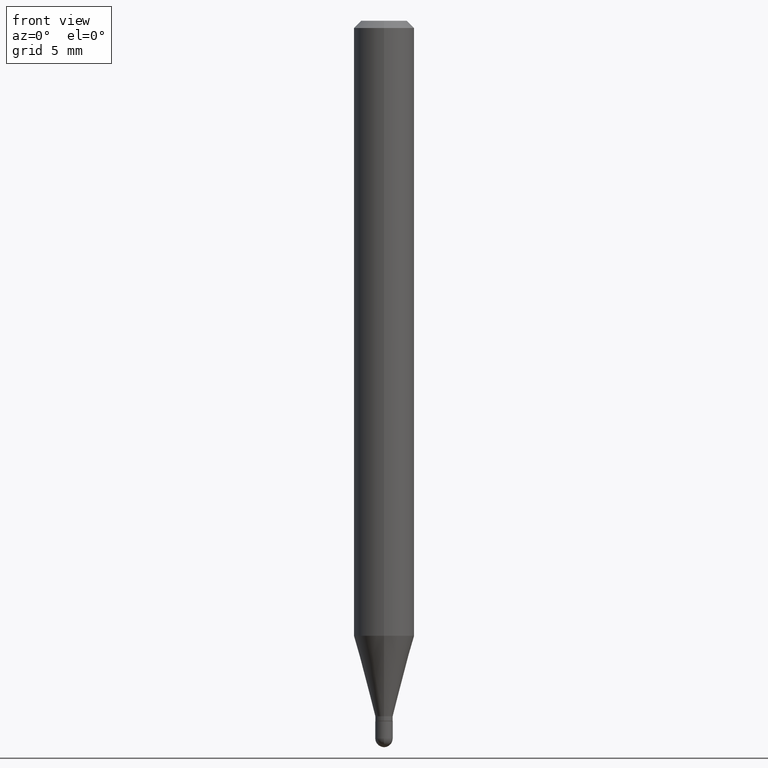
[diagram: clean part render]
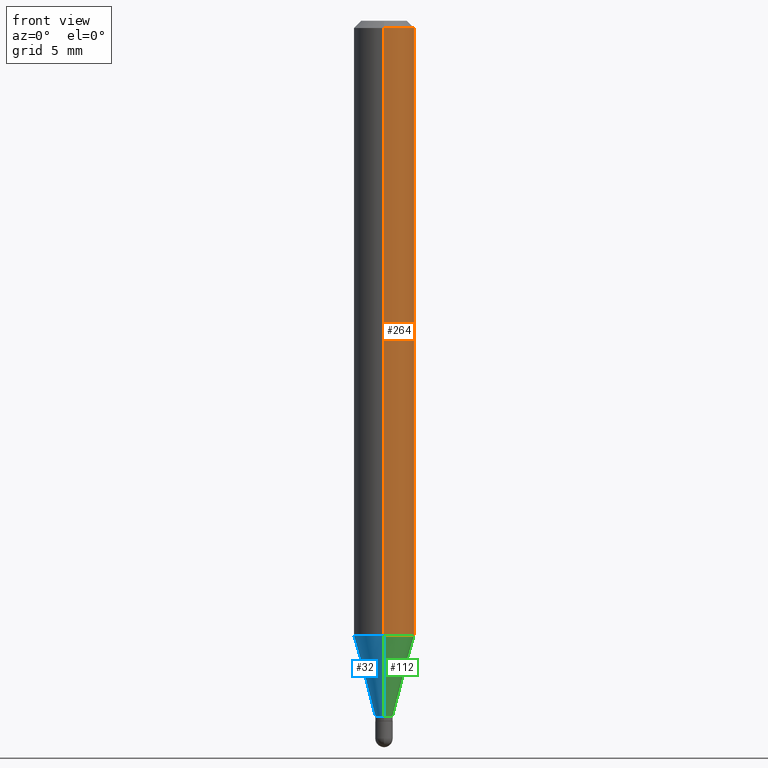
[diagram: same view with three faces highlighted in distinct colors, each labeled with its STEP entity id]
A machine part, front view with three faces highlighted in distinct colors.
Their STEP definitions:

[orange] entity #264 — the highlighted cylindrical surface (edge-blend (fillet) strip) has radius 1.5875 mm, axis along (-0, 0, 1).
#3 = DIRECTION ( 'NONE',  ( -6.982962677686265922E-15, -1.000000000000000000, 3.483106191921935554E-15 ) ) ;
#5 = DIRECTION ( 'NONE',  ( -6.982962677686265922E-15, -1.000000000000000000, 3.491499279888508481E-15 ) ) ;
#43 = ORIENTED_EDGE ( 'NONE', *, *, #195, .F. ) ;
#54 = AXIS2_PLACEMENT_3D ( 'NONE', #324, #85, #120 ) ;
#55 = VECTOR ( 'NONE', #94, 39.37007874015748143 ) ;
#82 = EDGE_CURVE ( 'NONE', #286, #401, #122, .T. ) ;
#85 = DIRECTION ( 'NONE',  ( -2.445456278020119844E-29, 3.491499279888508481E-15, 1.000000000000000000 ) ) ;
#94 = DIRECTION ( 'NONE',  ( -2.445456278020120124E-29, 3.491499279888508481E-15, 1.000000000000000000 ) ) ;
#96 = CYLINDRICAL_SURFACE ( 'NONE', #314, 0.06250000000000000000 ) ;
#116 = EDGE_CURVE ( 'NONE', #401, #178, #499, .T. ) ;
#120 = DIRECTION ( 'NONE',  ( -6.982962677686265922E-15, -1.000000000000000000, 4.370956789862821150E-15 ) ) ;
#122 = CIRCLE ( 'NONE', #54, 0.06250000000000000000 ) ;
#124 = DIRECTION ( 'NONE',  ( -2.445456278020119844E-29, 3.491499279888508481E-15, 1.000000000000000000 ) ) ;
#125 = ORIENTED_EDGE ( 'NONE', *, *, #116, .T. ) ;
#145 = CARTESIAN_POINT ( 'NONE',  ( 4.440892098500625669E-16, 0.06250000000000000000, -2.182187049930317801E-16 ) ) ;
#166 = LINE ( 'NONE', #446, #55 ) ;
#170 = DIRECTION ( 'NONE',  ( -2.445456278020119844E-29, 3.491499279888508481E-15, 1.000000000000000000 ) ) ;
#178 = VERTEX_POINT ( 'NONE', #188 ) ;
#181 = CIRCLE ( 'NONE', #305, 0.06250000000000000000 ) ;
#188 = CARTESIAN_POINT ( 'NONE',  ( 4.440892098500937762E-16, 0.06249999999999993755, -0.01499999999999997863 ) ) ;
#195 = EDGE_CURVE ( 'NONE', #501, #178, #181, .T. ) ;
#235 = CARTESIAN_POINT ( 'NONE',  ( 3.668184417030121542E-31, -5.237248919832678831E-17, -0.01499999999999976179 ) ) ;
#264 = ADVANCED_FACE ( 'NONE', ( #301 ), #96, .T. ) ;
#286 = VERTEX_POINT ( 'NONE', #409 ) ;
#301 = FACE_OUTER_BOUND ( 'NONE', #434, .T. ) ;
#305 = AXIS2_PLACEMENT_3D ( 'NONE', #235, #124, #3 ) ;
#309 = DIRECTION ( 'NONE',  ( -2.445456278020120124E-29, 3.491499279888508481E-15, 1.000000000000000000 ) ) ;
#312 = EDGE_CURVE ( 'NONE', #286, #501, #166, .T. ) ;
#314 = AXIS2_PLACEMENT_3D ( 'NONE', #373, #170, #5 ) ;
#317 = ORIENTED_EDGE ( 'NONE', *, *, #82, .T. ) ;
#324 = CARTESIAN_POINT ( 'NONE',  ( 3.105542980298851762E-29, -4.433937820452434626E-15, -1.269923739063185675 ) ) ;
#357 = ORIENTED_EDGE ( 'NONE', *, *, #312, .F. ) ;
#373 = CARTESIAN_POINT ( 'NONE',  ( 0.000000000000000000, 0.000000000000000000, 0.000000000000000000 ) ) ;
#401 = VERTEX_POINT ( 'NONE', #469 ) ;
#409 = CARTESIAN_POINT ( 'NONE',  ( -4.364351673553606573E-16, -0.06250000000000444089, -1.269923739063185453 ) ) ;
#434 = EDGE_LOOP ( 'NONE', ( #317, #125, #43, #357 ) ) ;
#446 = CARTESIAN_POINT ( 'NONE',  ( -4.364351673553916201E-16, -0.06250000000000000000, 2.182187049930317801E-16 ) ) ;
#469 = CARTESIAN_POINT ( 'NONE',  ( 4.440892098500933817E-16, 0.06249999999999555217, -1.269923739063185897 ) ) ;
#481 = CARTESIAN_POINT ( 'NONE',  ( -4.364351673553912750E-16, -0.06250000000000005551, -0.01499999999999954321 ) ) ;
#497 = VECTOR ( 'NONE', #309, 39.37007874015748143 ) ;
#499 = LINE ( 'NONE', #145, #497 ) ;
#501 = VERTEX_POINT ( 'NONE', #481 ) ;

[blue] entity #32 — the highlighted conical surface has half-angle 15 deg.
#9 = LINE ( 'NONE', #383, #221 ) ;
#32 = ADVANCED_FACE ( 'NONE', ( #429 ), #349, .T. ) ;
#39 = ORIENTED_EDGE ( 'NONE', *, *, #455, .T. ) ;
#48 = ORIENTED_EDGE ( 'NONE', *, *, #207, .F. ) ;
#49 = CARTESIAN_POINT ( 'NONE',  ( 3.511675215236892590E-29, -5.013792965919898616E-15, -1.436000000000000165 ) ) ;
#68 = DIRECTION ( 'NONE',  ( -2.445456278020119844E-29, 3.491499279888508481E-15, 1.000000000000000000 ) ) ;
#74 = CIRCLE ( 'NONE', #231, 0.01799999999999992231 ) ;
#87 = DIRECTION ( 'NONE',  ( -6.982962677686265133E-15, -1.000000000000000000, 0.000000000000000000 ) ) ;
#91 = CARTESIAN_POINT ( 'NONE',  ( 3.511675215236892590E-29, -5.013792965919898616E-15, -1.436000000000000165 ) ) ;
#150 = DIRECTION ( 'NONE',  ( -6.982962677686265133E-15, -1.000000000000000000, 0.000000000000000000 ) ) ;
#152 = VERTEX_POINT ( 'NONE', #438 ) ;
#182 = AXIS2_PLACEMENT_3D ( 'NONE', #280, #68, #327 ) ;
#184 = VERTEX_POINT ( 'NONE', #358 ) ;
#207 = EDGE_CURVE ( 'NONE', #152, #401, #246, .T. ) ;
#211 = AXIS2_PLACEMENT_3D ( 'NONE', #91, #302, #150 ) ;
#221 = VECTOR ( 'NONE', #297, 39.37007874015748143 ) ;
#231 = AXIS2_PLACEMENT_3D ( 'NONE', #49, #360, #87 ) ;
#246 = LINE ( 'NONE', #509, #475 ) ;
#253 = EDGE_LOOP ( 'NONE', ( #48, #267, #39, #500 ) ) ;
#267 = ORIENTED_EDGE ( 'NONE', *, *, #395, .T. ) ;
#280 = CARTESIAN_POINT ( 'NONE',  ( 3.105542980298851762E-29, -4.433937820452434626E-15, -1.269923739063185675 ) ) ;
#286 = VERTEX_POINT ( 'NONE', #409 ) ;
#297 = DIRECTION ( 'NONE',  ( -1.807323732225332900E-15, -0.2588190451025185745, 0.9659258262890689783 ) ) ;
#302 = DIRECTION ( 'NONE',  ( -2.445456278020119844E-29, 3.491499279888508481E-15, 1.000000000000000000 ) ) ;
#322 = DIRECTION ( 'NONE',  ( 1.839019923739603076E-15, 0.2588190451025253469, 0.9659258262890670910 ) ) ;
#327 = DIRECTION ( 'NONE',  ( -6.982962677686265922E-15, -1.000000000000000000, 4.370956789862821150E-15 ) ) ;
#349 = CONICAL_SURFACE ( 'NONE', #211, 0.01799999999999992231, 0.2617993877991506846 ) ;
#358 = CARTESIAN_POINT ( 'NONE',  ( -1.256933281983171216E-16, -0.01800000000000493566, -1.436000000000000165 ) ) ;
#360 = DIRECTION ( 'NONE',  ( -2.445456278020119844E-29, 3.491499279888508481E-15, 1.000000000000000000 ) ) ;
#383 = CARTESIAN_POINT ( 'NONE',  ( -1.256933281983171216E-16, -0.01800000000000493566, -1.436000000000000165 ) ) ;
#395 = EDGE_CURVE ( 'NONE', #152, #184, #74, .T. ) ;
#401 = VERTEX_POINT ( 'NONE', #469 ) ;
#409 = CARTESIAN_POINT ( 'NONE',  ( -4.364351673553606573E-16, -0.06250000000000444089, -1.269923739063185453 ) ) ;
#429 = FACE_OUTER_BOUND ( 'NONE', #253, .T. ) ;
#438 = CARTESIAN_POINT ( 'NONE',  ( 2.859934511434732179E-16, 0.01799999999999490896, -1.436000000000000165 ) ) ;
#455 = EDGE_CURVE ( 'NONE', #184, #286, #9, .T. ) ;
#469 = CARTESIAN_POINT ( 'NONE',  ( 4.440892098500933817E-16, 0.06249999999999555217, -1.269923739063185897 ) ) ;
#475 = VECTOR ( 'NONE', #322, 39.37007874015748143 ) ;
#498 = CIRCLE ( 'NONE', #182, 0.06250000000000000000 ) ;
#500 = ORIENTED_EDGE ( 'NONE', *, *, #503, .F. ) ;
#503 = EDGE_CURVE ( 'NONE', #401, #286, #498, .T. ) ;
#509 = CARTESIAN_POINT ( 'NONE',  ( 1.278976924368525858E-16, 0.01799999999999490896, -1.436000000000000165 ) ) ;

[green] entity #112 — the highlighted conical surface has half-angle 15 deg.
#9 = LINE ( 'NONE', #383, #221 ) ;
#21 = AXIS2_PLACEMENT_3D ( 'NONE', #174, #90, #256 ) ;
#54 = AXIS2_PLACEMENT_3D ( 'NONE', #324, #85, #120 ) ;
#61 = CIRCLE ( 'NONE', #21, 0.01799999999999992231 ) ;
#63 = EDGE_LOOP ( 'NONE', ( #320, #198, #194, #86 ) ) ;
#82 = EDGE_CURVE ( 'NONE', #286, #401, #122, .T. ) ;
#85 = DIRECTION ( 'NONE',  ( -2.445456278020119844E-29, 3.491499279888508481E-15, 1.000000000000000000 ) ) ;
#86 = ORIENTED_EDGE ( 'NONE', *, *, #455, .F. ) ;
#90 = DIRECTION ( 'NONE',  ( -2.445456278020119844E-29, 3.491499279888508481E-15, 1.000000000000000000 ) ) ;
#112 = ADVANCED_FACE ( 'NONE', ( #308 ), #113, .T. ) ;
#113 = CONICAL_SURFACE ( 'NONE', #269, 0.01799999999999992231, 0.2617993877991506846 ) ;
#120 = DIRECTION ( 'NONE',  ( -6.982962677686265922E-15, -1.000000000000000000, 4.370956789862821150E-15 ) ) ;
#122 = CIRCLE ( 'NONE', #54, 0.06250000000000000000 ) ;
#152 = VERTEX_POINT ( 'NONE', #438 ) ;
#174 = CARTESIAN_POINT ( 'NONE',  ( 3.511675215236892590E-29, -5.013792965919898616E-15, -1.436000000000000165 ) ) ;
#184 = VERTEX_POINT ( 'NONE', #358 ) ;
#194 = ORIENTED_EDGE ( 'NONE', *, *, #82, .F. ) ;
#198 = ORIENTED_EDGE ( 'NONE', *, *, #207, .T. ) ;
#207 = EDGE_CURVE ( 'NONE', #152, #401, #246, .T. ) ;
#221 = VECTOR ( 'NONE', #297, 39.37007874015748143 ) ;
#226 = DIRECTION ( 'NONE',  ( -6.982962677686265133E-15, -1.000000000000000000, 0.000000000000000000 ) ) ;
#246 = LINE ( 'NONE', #509, #475 ) ;
#256 = DIRECTION ( 'NONE',  ( -6.982962677686265133E-15, -1.000000000000000000, 0.000000000000000000 ) ) ;
#269 = AXIS2_PLACEMENT_3D ( 'NONE', #355, #458, #226 ) ;
#279 = EDGE_CURVE ( 'NONE', #184, #152, #61, .T. ) ;
#286 = VERTEX_POINT ( 'NONE', #409 ) ;
#297 = DIRECTION ( 'NONE',  ( -1.807323732225332900E-15, -0.2588190451025185745, 0.9659258262890689783 ) ) ;
#308 = FACE_OUTER_BOUND ( 'NONE', #63, .T. ) ;
#320 = ORIENTED_EDGE ( 'NONE', *, *, #279, .T. ) ;
#322 = DIRECTION ( 'NONE',  ( 1.839019923739603076E-15, 0.2588190451025253469, 0.9659258262890670910 ) ) ;
#324 = CARTESIAN_POINT ( 'NONE',  ( 3.105542980298851762E-29, -4.433937820452434626E-15, -1.269923739063185675 ) ) ;
#355 = CARTESIAN_POINT ( 'NONE',  ( 3.511675215236892590E-29, -5.013792965919898616E-15, -1.436000000000000165 ) ) ;
#358 = CARTESIAN_POINT ( 'NONE',  ( -1.256933281983171216E-16, -0.01800000000000493566, -1.436000000000000165 ) ) ;
#383 = CARTESIAN_POINT ( 'NONE',  ( -1.256933281983171216E-16, -0.01800000000000493566, -1.436000000000000165 ) ) ;
#401 = VERTEX_POINT ( 'NONE', #469 ) ;
#409 = CARTESIAN_POINT ( 'NONE',  ( -4.364351673553606573E-16, -0.06250000000000444089, -1.269923739063185453 ) ) ;
#438 = CARTESIAN_POINT ( 'NONE',  ( 2.859934511434732179E-16, 0.01799999999999490896, -1.436000000000000165 ) ) ;
#455 = EDGE_CURVE ( 'NONE', #184, #286, #9, .T. ) ;
#458 = DIRECTION ( 'NONE',  ( -2.445456278020119844E-29, 3.491499279888508481E-15, 1.000000000000000000 ) ) ;
#469 = CARTESIAN_POINT ( 'NONE',  ( 4.440892098500933817E-16, 0.06249999999999555217, -1.269923739063185897 ) ) ;
#475 = VECTOR ( 'NONE', #322, 39.37007874015748143 ) ;
#509 = CARTESIAN_POINT ( 'NONE',  ( 1.278976924368525858E-16, 0.01799999999999490896, -1.436000000000000165 ) ) ;